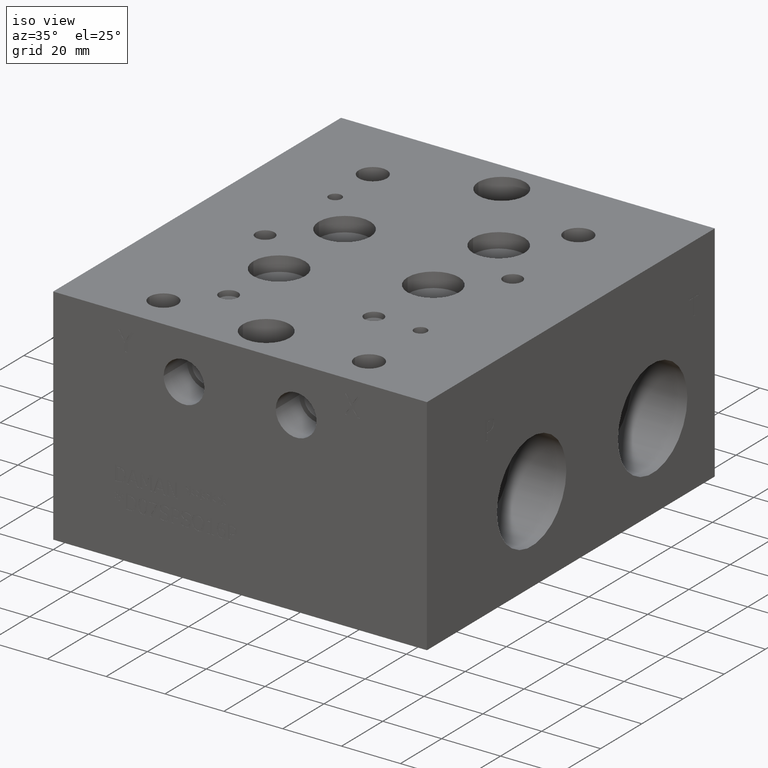
[diagram: clean part render]
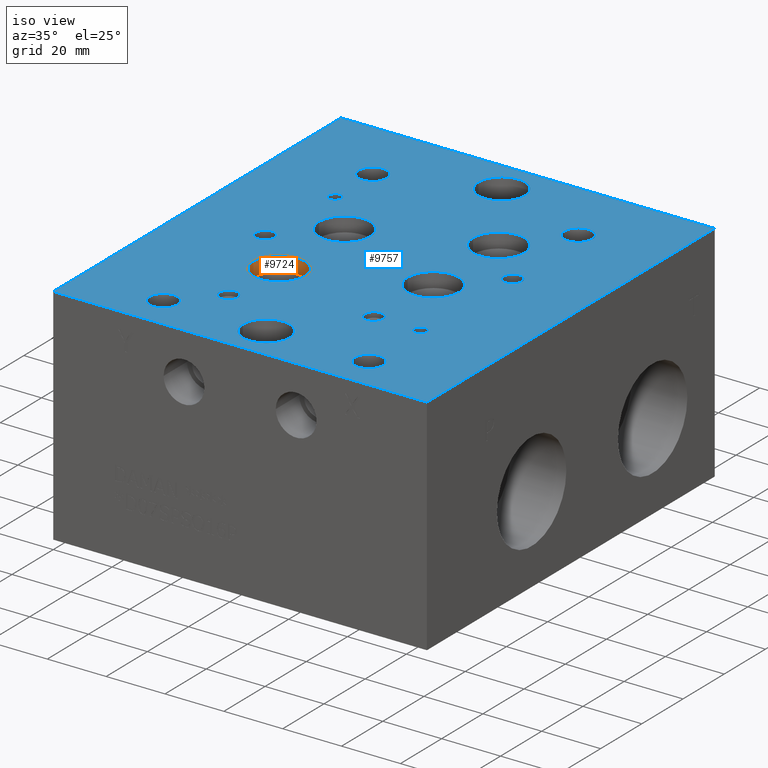
[diagram: same view with the hole feature highlighted: cylindrical wall and planar end face, labeled with their STEP entity ids]
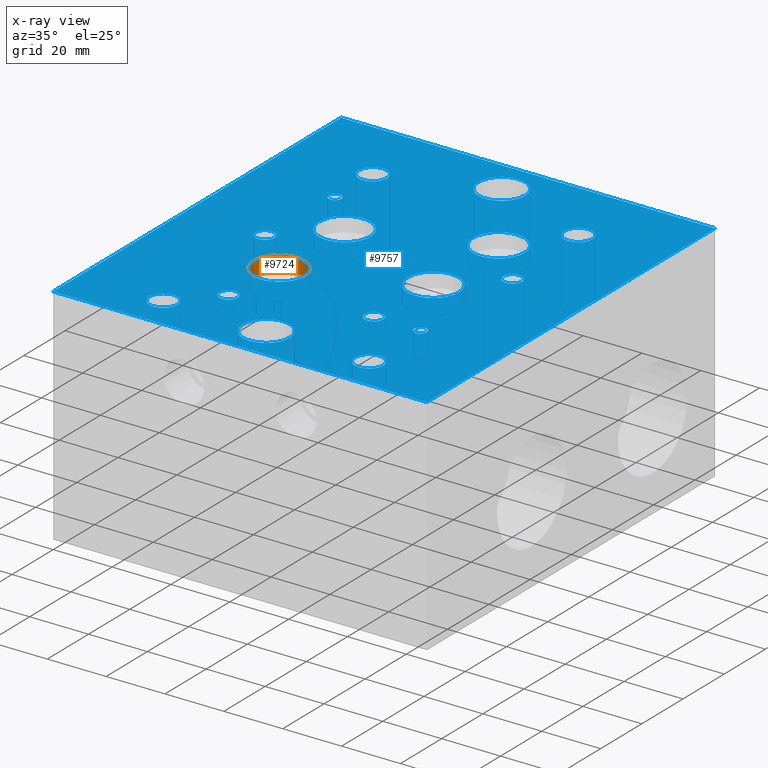
[diagram: x-ray of the same camera — body ghosted, the hole faces saturated]
A machine part, iso view. The highlighted faces form one hole feature of diameter 17.4752 mm: the cylindrical wall (entity #9724, orange) and its adjacent planar end face (entity #9757, blue) — they share a circular edge in the B-rep.
The next image is the same camera in x-ray (body ghosted, the hole faces saturated) — the bore reads through the body.
Wall:
#35=CYLINDRICAL_SURFACE('',#10177,8.7376);
#144=CIRCLE('',#10175,8.7376);
#145=CIRCLE('',#10176,8.7376);
#146=CIRCLE('',#10178,8.7376);
#147=CIRCLE('',#10179,8.7376);
#1042=FACE_OUTER_BOUND('',#1590,.T.);
#1590=EDGE_LOOP('',(#8532,#8533,#8534,#8535,#8536,#8537));
#2568=LINE('',#16489,#3512);
#3512=VECTOR('',#11999,8.7376);
#4654=VERTEX_POINT('',#16478);
#4655=VERTEX_POINT('',#16479);
#4657=VERTEX_POINT('',#16485);
#4658=VERTEX_POINT('',#16486);
#5973=EDGE_CURVE('',#4654,#4655,#144,.T.);
#5975=EDGE_CURVE('',#4655,#4654,#145,.T.);
#5976=EDGE_CURVE('',#4657,#4658,#146,.T.);
#5977=EDGE_CURVE('',#4658,#4657,#147,.T.);
#5978=EDGE_CURVE('',#4658,#4655,#2568,.T.);
#8532=ORIENTED_EDGE('',*,*,#5976,.F.);
#8533=ORIENTED_EDGE('',*,*,#5977,.F.);
#8534=ORIENTED_EDGE('',*,*,#5978,.T.);
#8535=ORIENTED_EDGE('',*,*,#5973,.F.);
#8536=ORIENTED_EDGE('',*,*,#5975,.F.);
#8537=ORIENTED_EDGE('',*,*,#5978,.F.);
#9724=ADVANCED_FACE('',(#1042),#35,.F.);
#10175=AXIS2_PLACEMENT_3D('',#16480,#11988,#11989);
#10176=AXIS2_PLACEMENT_3D('',#16483,#11991,#11992);
#10177=AXIS2_PLACEMENT_3D('',#16484,#11993,#11994);
#10178=AXIS2_PLACEMENT_3D('',#16487,#11995,#11996);
#10179=AXIS2_PLACEMENT_3D('',#16488,#11997,#11998);
#11988=DIRECTION('center_axis',(0.,0.,1.));
#11989=DIRECTION('ref_axis',(1.,0.,0.));
#11991=DIRECTION('center_axis',(0.,0.,1.));
#11992=DIRECTION('ref_axis',(1.,0.,0.));
#11993=DIRECTION('center_axis',(0.,0.,1.));
#11994=DIRECTION('ref_axis',(1.,0.,0.));
#11995=DIRECTION('center_axis',(0.,0.,-1.));
#11996=DIRECTION('ref_axis',(1.,0.,0.));
#11997=DIRECTION('center_axis',(0.,0.,-1.));
#11998=DIRECTION('ref_axis',(1.,0.,0.));
#11999=DIRECTION('',(0.,0.,-1.));
#16478=CARTESIAN_POINT('',(51.6128,48.4124,71.15534));
#16479=CARTESIAN_POINT('',(34.1376,48.4124,71.15534));
#16480=CARTESIAN_POINT('Origin',(42.8752,48.4124,71.15534));
#16483=CARTESIAN_POINT('Origin',(42.8752,48.4124,71.15534));
#16484=CARTESIAN_POINT('Origin',(42.8752,48.4124,73.67767));
#16485=CARTESIAN_POINT('',(51.6128,48.4124,76.2));
#16486=CARTESIAN_POINT('',(34.1376,48.4124,76.2));
#16487=CARTESIAN_POINT('Origin',(42.8752,48.4124,76.2));
#16488=CARTESIAN_POINT('Origin',(42.8752,48.4124,76.2));
#16489=CARTESIAN_POINT('',(34.1376,48.4124,73.67767));
End face:
#115=CIRCLE('',#10131,7.9375);
#116=CIRCLE('',#10132,7.9375);
#121=CIRCLE('',#10140,7.9375);
#122=CIRCLE('',#10141,7.9375);
#126=CIRCLE('',#10148,3.175);
#127=CIRCLE('',#10149,3.175);
#130=CIRCLE('',#10154,3.175);
#131=CIRCLE('',#10155,3.175);
#134=CIRCLE('',#10160,8.7376);
#135=CIRCLE('',#10161,8.7376);
#138=CIRCLE('',#10166,8.7376);
#139=CIRCLE('',#10167,8.7376);
#142=CIRCLE('',#10172,8.7376);
#143=CIRCLE('',#10173,8.7376);
#146=CIRCLE('',#10178,8.7376);
#147=CIRCLE('',#10179,8.7376);
#150=CIRCLE('',#10184,2.1844);
#151=CIRCLE('',#10185,2.1844);
#154=CIRCLE('',#10190,2.1844);
#155=CIRCLE('',#10191,2.1844);
#161=CIRCLE('',#10200,3.175);
#162=CIRCLE('',#10201,3.175);
#168=CIRCLE('',#10211,3.175);
#169=CIRCLE('',#10212,3.175);
#175=CIRCLE('',#10222,4.7625);
#176=CIRCLE('',#10223,4.7625);
#182=CIRCLE('',#10233,4.7625);
#183=CIRCLE('',#10234,4.7625);
#189=CIRCLE('',#10244,4.7625);
#190=CIRCLE('',#10245,4.7625);
#196=CIRCLE('',#10255,4.7625);
#197=CIRCLE('',#10256,4.7625);
#257=FACE_BOUND('',#1630,.T.);
#258=FACE_BOUND('',#1631,.T.);
#259=FACE_BOUND('',#1632,.T.);
#260=FACE_BOUND('',#1633,.T.);
#261=FACE_BOUND('',#1634,.T.);
#262=FACE_BOUND('',#1635,.T.);
#263=FACE_BOUND('',#1636,.T.);
#264=FACE_BOUND('',#1637,.T.);
#265=FACE_BOUND('',#1638,.T.);
#266=FACE_BOUND('',#1639,.T.);
#267=FACE_BOUND('',#1640,.T.);
#268=FACE_BOUND('',#1641,.T.);
#269=FACE_BOUND('',#1642,.T.);
#270=FACE_BOUND('',#1643,.T.);
#271=FACE_BOUND('',#1644,.T.);
#272=FACE_BOUND('',#1645,.T.);
#580=PLANE('',#10262);
#1075=FACE_OUTER_BOUND('',#1629,.T.);
#1629=EDGE_LOOP('',(#8683,#8684,#8685,#8686));
#1630=EDGE_LOOP('',(#8687,#8688));
#1631=EDGE_LOOP('',(#8689,#8690));
#1632=EDGE_LOOP('',(#8691,#8692));
#1633=EDGE_LOOP('',(#8693,#8694));
#1634=EDGE_LOOP('',(#8695,#8696));
#1635=EDGE_LOOP('',(#8697,#8698));
#1636=EDGE_LOOP('',(#8699,#8700));
#1637=EDGE_LOOP('',(#8701,#8702));
#1638=EDGE_LOOP('',(#8703,#8704));
#1639=EDGE_LOOP('',(#8705,#8706));
#1640=EDGE_LOOP('',(#8707,#8708));
#1641=EDGE_LOOP('',(#8709,#8710));
#1642=EDGE_LOOP('',(#8711,#8712));
#1643=EDGE_LOOP('',(#8713,#8714));
#1644=EDGE_LOOP('',(#8715,#8716));
#1645=EDGE_LOOP('',(#8717,#8718));
#1683=LINE('',#12401,#2627);
#2013=LINE('',#14815,#2957);
#2500=LINE('',#16191,#3444);
#2592=LINE('',#16651,#3536);
#2627=VECTOR('',#10320,10.);
#2957=VECTOR('',#10834,10.);
#3444=VECTOR('',#11679,10.);
#3536=VECTOR('',#12183,10.);
#3835=VERTEX_POINT('',#12398);
#3836=VERTEX_POINT('',#12400);
#4196=VERTEX_POINT('',#14814);
#4554=VERTEX_POINT('',#16190);
#4620=VERTEX_POINT('',#16386);
#4621=VERTEX_POINT('',#16387);
#4626=VERTEX_POINT('',#16403);
#4627=VERTEX_POINT('',#16404);
#4632=VERTEX_POINT('',#16420);
#4633=VERTEX_POINT('',#16421);
#4637=VERTEX_POINT('',#16433);
#4638=VERTEX_POINT('',#16434);
#4642=VERTEX_POINT('',#16446);
#4643=VERTEX_POINT('',#16447);
#4647=VERTEX_POINT('',#16459);
#4648=VERTEX_POINT('',#16460);
#4652=VERTEX_POINT('',#16472);
#4653=VERTEX_POINT('',#16473);
#4657=VERTEX_POINT('',#16485);
#4658=VERTEX_POINT('',#16486);
#4662=VERTEX_POINT('',#16498);
#4663=VERTEX_POINT('',#16499);
#4667=VERTEX_POINT('',#16511);
#4668=VERTEX_POINT('',#16512);
#4675=VERTEX_POINT('',#16531);
#4676=VERTEX_POINT('',#16532);
#4683=VERTEX_POINT('',#16553);
#4684=VERTEX_POINT('',#16554);
#4691=VERTEX_POINT('',#16575);
#4692=VERTEX_POINT('',#16576);
#4699=VERTEX_POINT('',#16597);
#4700=VERTEX_POINT('',#16598);
#4707=VERTEX_POINT('',#16619);
#4708=VERTEX_POINT('',#16620);
#4715=VERTEX_POINT('',#16641);
#4716=VERTEX_POINT('',#16642);
#4767=EDGE_CURVE('',#3836,#3835,#1683,.T.);
#5305=EDGE_CURVE('',#4196,#3836,#2013,.T.);
#5840=EDGE_CURVE('',#4554,#4196,#2500,.T.);
#5930=EDGE_CURVE('',#4620,#4621,#115,.T.);
#5931=EDGE_CURVE('',#4621,#4620,#116,.T.);
#5938=EDGE_CURVE('',#4626,#4627,#121,.T.);
#5939=EDGE_CURVE('',#4627,#4626,#122,.T.);
#5946=EDGE_CURVE('',#4632,#4633,#126,.T.);
#5947=EDGE_CURVE('',#4633,#4632,#127,.T.);
#5952=EDGE_CURVE('',#4637,#4638,#130,.T.);
#5953=EDGE_CURVE('',#4638,#4637,#131,.T.);
#5958=EDGE_CURVE('',#4642,#4643,#134,.T.);
#5959=EDGE_CURVE('',#4643,#4642,#135,.T.);
#5964=EDGE_CURVE('',#4647,#4648,#138,.T.);
#5965=EDGE_CURVE('',#4648,#4647,#139,.T.);
#5970=EDGE_CURVE('',#4652,#4653,#142,.T.);
#5971=EDGE_CURVE('',#4653,#4652,#143,.T.);
#5976=EDGE_CURVE('',#4657,#4658,#146,.T.);
#5977=EDGE_CURVE('',#4658,#4657,#147,.T.);
#5982=EDGE_CURVE('',#4662,#4663,#150,.T.);
#5983=EDGE_CURVE('',#4663,#4662,#151,.T.);
#5988=EDGE_CURVE('',#4667,#4668,#154,.T.);
#5989=EDGE_CURVE('',#4668,#4667,#155,.T.);
#5997=EDGE_CURVE('',#4675,#4676,#161,.T.);
#5998=EDGE_CURVE('',#4676,#4675,#162,.T.);
#6007=EDGE_CURVE('',#4683,#4684,#168,.T.);
#6008=EDGE_CURVE('',#4684,#4683,#169,.T.);
#6017=EDGE_CURVE('',#4691,#4692,#175,.T.);
#6018=EDGE_CURVE('',#4692,#4691,#176,.T.);
#6027=EDGE_CURVE('',#4699,#4700,#182,.T.);
#6028=EDGE_CURVE('',#4700,#4699,#183,.T.);
#6037=EDGE_CURVE('',#4707,#4708,#189,.T.);
#6038=EDGE_CURVE('',#4708,#4707,#190,.T.);
#6047=EDGE_CURVE('',#4715,#4716,#196,.T.);
#6048=EDGE_CURVE('',#4716,#4715,#197,.T.);
#6052=EDGE_CURVE('',#3835,#4554,#2592,.T.);
#8683=ORIENTED_EDGE('',*,*,#5305,.T.);
#8684=ORIENTED_EDGE('',*,*,#4767,.T.);
#8685=ORIENTED_EDGE('',*,*,#6052,.T.);
#8686=ORIENTED_EDGE('',*,*,#5840,.T.);
#8687=ORIENTED_EDGE('',*,*,#5930,.T.);
#8688=ORIENTED_EDGE('',*,*,#5931,.T.);
#8689=ORIENTED_EDGE('',*,*,#5938,.T.);
#8690=ORIENTED_EDGE('',*,*,#5939,.T.);
#8691=ORIENTED_EDGE('',*,*,#5946,.T.);
#8692=ORIENTED_EDGE('',*,*,#5947,.T.);
#8693=ORIENTED_EDGE('',*,*,#5952,.T.);
#8694=ORIENTED_EDGE('',*,*,#5953,.T.);
#8695=ORIENTED_EDGE('',*,*,#5958,.T.);
#8696=ORIENTED_EDGE('',*,*,#5959,.T.);
#8697=ORIENTED_EDGE('',*,*,#5964,.T.);
#8698=ORIENTED_EDGE('',*,*,#5965,.T.);
#8699=ORIENTED_EDGE('',*,*,#5970,.T.);
#8700=ORIENTED_EDGE('',*,*,#5971,.T.);
#8701=ORIENTED_EDGE('',*,*,#5976,.T.);
#8702=ORIENTED_EDGE('',*,*,#5977,.T.);
#8703=ORIENTED_EDGE('',*,*,#5982,.T.);
#8704=ORIENTED_EDGE('',*,*,#5983,.T.);
#8705=ORIENTED_EDGE('',*,*,#5988,.T.);
#8706=ORIENTED_EDGE('',*,*,#5989,.T.);
#8707=ORIENTED_EDGE('',*,*,#5997,.T.);
#8708=ORIENTED_EDGE('',*,*,#5998,.T.);
#8709=ORIENTED_EDGE('',*,*,#6007,.T.);
#8710=ORIENTED_EDGE('',*,*,#6008,.T.);
#8711=ORIENTED_EDGE('',*,*,#6017,.T.);
#8712=ORIENTED_EDGE('',*,*,#6018,.T.);
#8713=ORIENTED_EDGE('',*,*,#6027,.T.);
#8714=ORIENTED_EDGE('',*,*,#6028,.T.);
#8715=ORIENTED_EDGE('',*,*,#6037,.T.);
#8716=ORIENTED_EDGE('',*,*,#6038,.T.);
#8717=ORIENTED_EDGE('',*,*,#6047,.T.);
#8718=ORIENTED_EDGE('',*,*,#6048,.T.);
#9757=ADVANCED_FACE('',(#1075,#257,#258,#259,#260,#261,#262,#263,#264,#265,
#266,#267,#268,#269,#270,#271,#272),#580,.T.);
#10131=AXIS2_PLACEMENT_3D('',#16388,#11886,#11887);
#10132=AXIS2_PLACEMENT_3D('',#16389,#11888,#11889);
#10140=AXIS2_PLACEMENT_3D('',#16405,#11906,#11907);
#10141=AXIS2_PLACEMENT_3D('',#16406,#11908,#11909);
#10148=AXIS2_PLACEMENT_3D('',#16422,#11925,#11926);
#10149=AXIS2_PLACEMENT_3D('',#16423,#11927,#11928);
#10154=AXIS2_PLACEMENT_3D('',#16435,#11939,#11940);
#10155=AXIS2_PLACEMENT_3D('',#16436,#11941,#11942);
#10160=AXIS2_PLACEMENT_3D('',#16448,#11953,#11954);
#10161=AXIS2_PLACEMENT_3D('',#16449,#11955,#11956);
#10166=AXIS2_PLACEMENT_3D('',#16461,#11967,#11968);
#10167=AXIS2_PLACEMENT_3D('',#16462,#11969,#11970);
#10172=AXIS2_PLACEMENT_3D('',#16474,#11981,#11982);
#10173=AXIS2_PLACEMENT_3D('',#16475,#11983,#11984);
#10178=AXIS2_PLACEMENT_3D('',#16487,#11995,#11996);
#10179=AXIS2_PLACEMENT_3D('',#16488,#11997,#11998);
#10184=AXIS2_PLACEMENT_3D('',#16500,#12009,#12010);
#10185=AXIS2_PLACEMENT_3D('',#16501,#12011,#12012);
#10190=AXIS2_PLACEMENT_3D('',#16513,#12023,#12024);
#10191=AXIS2_PLACEMENT_3D('',#16514,#12025,#12026);
#10200=AXIS2_PLACEMENT_3D('',#16533,#12045,#12046);
#10201=AXIS2_PLACEMENT_3D('',#16534,#12047,#12048);
#10211=AXIS2_PLACEMENT_3D('',#16555,#12070,#12071);
#10212=AXIS2_PLACEMENT_3D('',#16556,#12072,#12073);
#10222=AXIS2_PLACEMENT_3D('',#16577,#12095,#12096);
#10223=AXIS2_PLACEMENT_3D('',#16578,#12097,#12098);
#10233=AXIS2_PLACEMENT_3D('',#16599,#12120,#12121);
#10234=AXIS2_PLACEMENT_3D('',#16600,#12122,#12123);
#10244=AXIS2_PLACEMENT_3D('',#16621,#12145,#12146);
#10245=AXIS2_PLACEMENT_3D('',#16622,#12147,#12148);
#10255=AXIS2_PLACEMENT_3D('',#16643,#12170,#12171);
#10256=AXIS2_PLACEMENT_3D('',#16644,#12172,#12173);
#10262=AXIS2_PLACEMENT_3D('',#16654,#12188,#12189);
#10320=DIRECTION('',(0.,1.,0.));
#10834=DIRECTION('',(1.,0.,0.));
#11679=DIRECTION('',(0.,-1.,0.));
#11886=DIRECTION('center_axis',(0.,0.,-1.));
#11887=DIRECTION('ref_axis',(1.,0.,0.));
#11888=DIRECTION('center_axis',(0.,0.,-1.));
#11889=DIRECTION('ref_axis',(1.,0.,0.));
#11906=DIRECTION('center_axis',(0.,0.,-1.));
#11907=DIRECTION('ref_axis',(1.,0.,0.));
#11908=DIRECTION('center_axis',(0.,0.,-1.));
#11909=DIRECTION('ref_axis',(1.,0.,0.));
#11925=DIRECTION('center_axis',(0.,0.,-1.));
#11926=DIRECTION('ref_axis',(1.,0.,0.));
#11927=DIRECTION('center_axis',(0.,0.,-1.));
#11928=DIRECTION('ref_axis',(1.,0.,0.));
#11939=DIRECTION('center_axis',(0.,0.,-1.));
#11940=DIRECTION('ref_axis',(1.,0.,0.));
#11941=DIRECTION('center_axis',(0.,0.,-1.));
#11942=DIRECTION('ref_axis',(1.,0.,0.));
#11953=DIRECTION('center_axis',(0.,0.,-1.));
#11954=DIRECTION('ref_axis',(1.,0.,0.));
#11955=DIRECTION('center_axis',(0.,0.,-1.));
#11956=DIRECTION('ref_axis',(1.,0.,0.));
#11967=DIRECTION('center_axis',(0.,0.,-1.));
#11968=DIRECTION('ref_axis',(1.,0.,0.));
#11969=DIRECTION('center_axis',(0.,0.,-1.));
#11970=DIRECTION('ref_axis',(1.,0.,0.));
#11981=DIRECTION('center_axis',(0.,0.,-1.));
#11982=DIRECTION('ref_axis',(1.,0.,0.));
#11983=DIRECTION('center_axis',(0.,0.,-1.));
#11984=DIRECTION('ref_axis',(1.,0.,0.));
#11995=DIRECTION('center_axis',(0.,0.,-1.));
#11996=DIRECTION('ref_axis',(1.,0.,0.));
#11997=DIRECTION('center_axis',(0.,0.,-1.));
#11998=DIRECTION('ref_axis',(1.,0.,0.));
#12009=DIRECTION('center_axis',(0.,0.,-1.));
#12010=DIRECTION('ref_axis',(1.,0.,0.));
#12011=DIRECTION('center_axis',(0.,0.,-1.));
#12012=DIRECTION('ref_axis',(1.,0.,0.));
#12023=DIRECTION('center_axis',(0.,0.,-1.));
#12024=DIRECTION('ref_axis',(1.,0.,0.));
#12025=DIRECTION('center_axis',(0.,0.,-1.));
#12026=DIRECTION('ref_axis',(1.,0.,0.));
#12045=DIRECTION('center_axis',(0.,0.,-1.));
#12046=DIRECTION('ref_axis',(1.,0.,0.));
#12047=DIRECTION('center_axis',(0.,0.,-1.));
#12048=DIRECTION('ref_axis',(1.,0.,0.));
#12070=DIRECTION('center_axis',(0.,0.,-1.));
#12071=DIRECTION('ref_axis',(1.,0.,0.));
#12072=DIRECTION('center_axis',(0.,0.,-1.));
#12073=DIRECTION('ref_axis',(1.,0.,0.));
#12095=DIRECTION('center_axis',(0.,0.,-1.));
#12096=DIRECTION('ref_axis',(1.,0.,0.));
#12097=DIRECTION('center_axis',(0.,0.,-1.));
#12098=DIRECTION('ref_axis',(1.,0.,0.));
#12120=DIRECTION('center_axis',(0.,0.,-1.));
#12121=DIRECTION('ref_axis',(1.,0.,0.));
#12122=DIRECTION('center_axis',(0.,0.,-1.));
#12123=DIRECTION('ref_axis',(1.,0.,0.));
#12145=DIRECTION('center_axis',(0.,0.,-1.));
#12146=DIRECTION('ref_axis',(1.,0.,0.));
#12147=DIRECTION('center_axis',(0.,0.,-1.));
#12148=DIRECTION('ref_axis',(1.,0.,0.));
#12170=DIRECTION('center_axis',(0.,0.,-1.));
#12171=DIRECTION('ref_axis',(1.,0.,0.));
#12172=DIRECTION('center_axis',(0.,0.,-1.));
#12173=DIRECTION('ref_axis',(1.,0.,0.));
#12183=DIRECTION('',(-1.,0.,0.));
#12188=DIRECTION('center_axis',(0.,0.,1.));
#12189=DIRECTION('ref_axis',(1.,0.,0.));
#12398=CARTESIAN_POINT('',(127.,139.7,76.2));
#12400=CARTESIAN_POINT('',(127.,0.,76.2));
#12401=CARTESIAN_POINT('',(127.,0.,76.2));
#14814=CARTESIAN_POINT('',(0.,0.,76.2));
#14815=CARTESIAN_POINT('',(0.,0.,76.2));
#16190=CARTESIAN_POINT('',(0.,139.7,76.2));
#16191=CARTESIAN_POINT('',(0.,139.7,76.2));
#16386=CARTESIAN_POINT('',(71.4375,127.,76.2));
#16387=CARTESIAN_POINT('',(55.5625,127.,76.2));
#16388=CARTESIAN_POINT('Origin',(63.5,127.,76.2));
#16389=CARTESIAN_POINT('Origin',(63.5,127.,76.2));
#16403=CARTESIAN_POINT('',(71.4375,12.7,76.2));
#16404=CARTESIAN_POINT('',(55.5625,12.7,76.2));
#16405=CARTESIAN_POINT('Origin',(63.5,12.7,76.2));
#16406=CARTESIAN_POINT('Origin',(63.5,12.7,76.2));
#16420=CARTESIAN_POINT('',(85.7504,37.6936,76.2));
#16421=CARTESIAN_POINT('',(79.4004,37.6936,76.2));
#16422=CARTESIAN_POINT('Origin',(82.5754,37.6936,76.2));
#16423=CARTESIAN_POINT('Origin',(82.5754,37.6936,76.2));
#16433=CARTESIAN_POINT('',(44.45,26.1874,76.2));
#16434=CARTESIAN_POINT('',(38.1,26.1874,76.2));
#16435=CARTESIAN_POINT('Origin',(41.275,26.1874,76.2));
#16436=CARTESIAN_POINT('Origin',(41.275,26.1874,76.2));
#16446=CARTESIAN_POINT('',(51.6128,80.1624,76.2));
#16447=CARTESIAN_POINT('',(34.1376,80.1624,76.2));
#16448=CARTESIAN_POINT('Origin',(42.8752,80.1624,76.2));
#16449=CARTESIAN_POINT('Origin',(42.8752,80.1624,76.2));
#16459=CARTESIAN_POINT('',(92.8878,64.2874,76.2));
#16460=CARTESIAN_POINT('',(75.4126,64.2874,76.2));
#16461=CARTESIAN_POINT('Origin',(84.1502,64.2874,76.2));
#16462=CARTESIAN_POINT('Origin',(84.1502,64.2874,76.2));
#16472=CARTESIAN_POINT('',(92.8878,96.0374,76.2));
#16473=CARTESIAN_POINT('',(75.4126,96.0374,76.2));
#16474=CARTESIAN_POINT('Origin',(84.1502,96.0374,76.2));
#16475=CARTESIAN_POINT('Origin',(84.1502,96.0374,76.2));
#16485=CARTESIAN_POINT('',(51.6128,48.4124,76.2));
#16486=CARTESIAN_POINT('',(34.1376,48.4124,76.2));
#16487=CARTESIAN_POINT('Origin',(42.8752,48.4124,76.2));
#16488=CARTESIAN_POINT('Origin',(42.8752,48.4124,76.2));
#16498=CARTESIAN_POINT('',(30.7594,96.0374,76.2));
#16499=CARTESIAN_POINT('',(26.3906,96.0374,76.2));
#16500=CARTESIAN_POINT('Origin',(28.575,96.0374,76.2));
#16501=CARTESIAN_POINT('Origin',(28.575,96.0374,76.2));
#16511=CARTESIAN_POINT('',(100.6094,37.6936,76.2));
#16512=CARTESIAN_POINT('',(96.2406,37.6936,76.2));
#16513=CARTESIAN_POINT('Origin',(98.425,37.6936,76.2));
#16514=CARTESIAN_POINT('Origin',(98.425,37.6936,76.2));
#16531=CARTESIAN_POINT('',(30.1752,64.2874,76.2));
#16532=CARTESIAN_POINT('',(23.8252,64.2874,76.2));
#16533=CARTESIAN_POINT('Origin',(27.0002,64.2874,76.2));
#16534=CARTESIAN_POINT('Origin',(27.0002,64.2874,76.2));
#16553=CARTESIAN_POINT('',(103.2002,80.1624,76.2));
#16554=CARTESIAN_POINT('',(96.8502,80.1624,76.2));
#16555=CARTESIAN_POINT('Origin',(100.0252,80.1624,76.2));
#16556=CARTESIAN_POINT('Origin',(100.0252,80.1624,76.2));
#16575=CARTESIAN_POINT('',(103.1875,12.7,76.2));
#16576=CARTESIAN_POINT('',(93.6625,12.7,76.2));
#16577=CARTESIAN_POINT('Origin',(98.425,12.7,76.2));
#16578=CARTESIAN_POINT('Origin',(98.425,12.7,76.2));
#16597=CARTESIAN_POINT('',(33.3375,114.3,76.2));
#16598=CARTESIAN_POINT('',(23.8125,114.3,76.2));
#16599=CARTESIAN_POINT('Origin',(28.575,114.3,76.2));
#16600=CARTESIAN_POINT('Origin',(28.575,114.3,76.2));
#16619=CARTESIAN_POINT('',(103.1875,114.3,76.2));
#16620=CARTESIAN_POINT('',(93.6625,114.3,76.2));
#16621=CARTESIAN_POINT('Origin',(98.425,114.3,76.2));
#16622=CARTESIAN_POINT('Origin',(98.425,114.3,76.2));
#16641=CARTESIAN_POINT('',(33.3375,12.7,76.2));
#16642=CARTESIAN_POINT('',(23.8125,12.7,76.2));
#16643=CARTESIAN_POINT('Origin',(28.575,12.7,76.2));
#16644=CARTESIAN_POINT('Origin',(28.575,12.7,76.2));
#16651=CARTESIAN_POINT('',(127.,139.7,76.2));
#16654=CARTESIAN_POINT('Origin',(63.5,69.85,76.2));